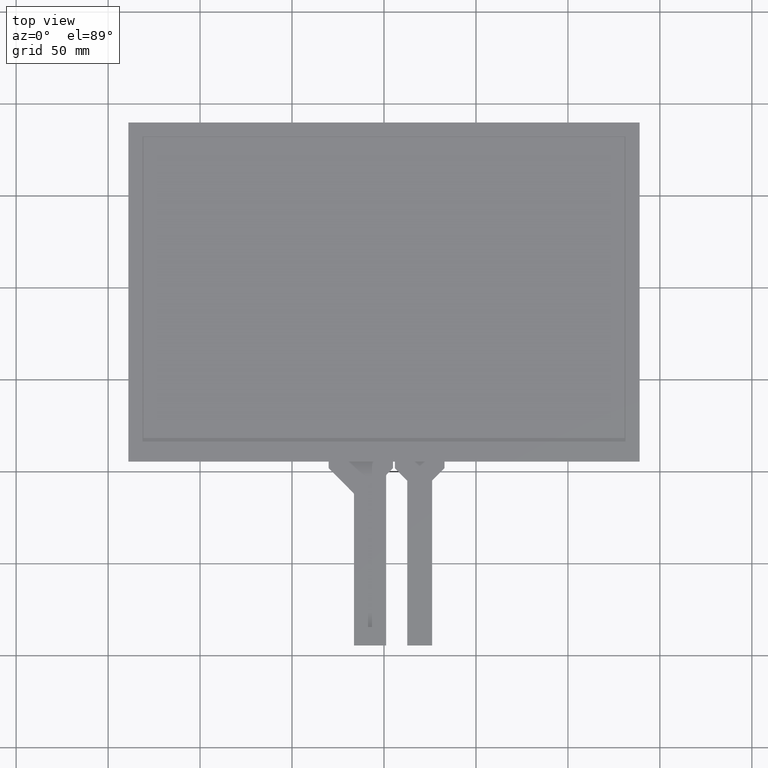
[diagram: clean part render]
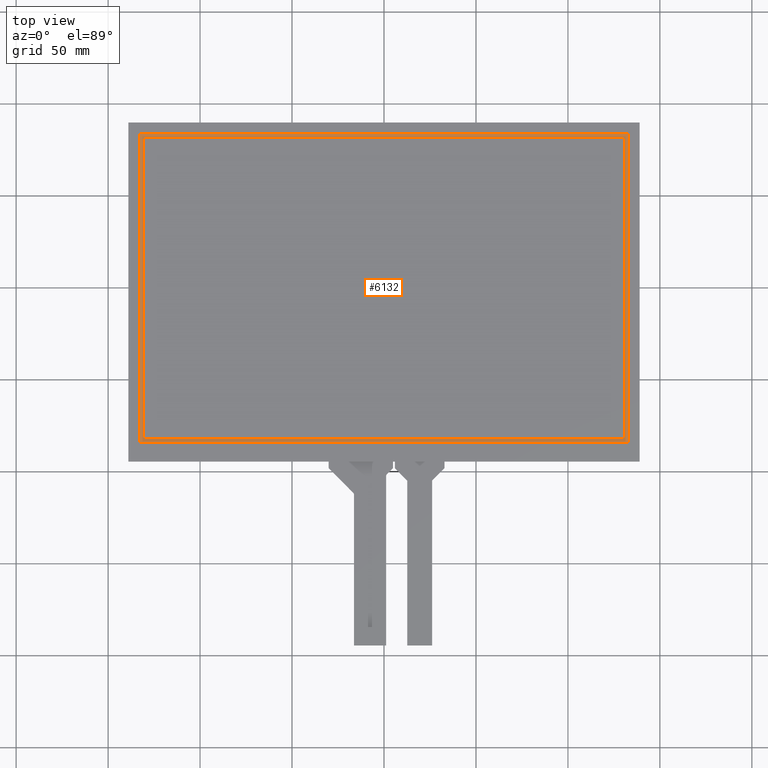
[diagram: same view with one face highlighted and labeled with its STEP entity id]
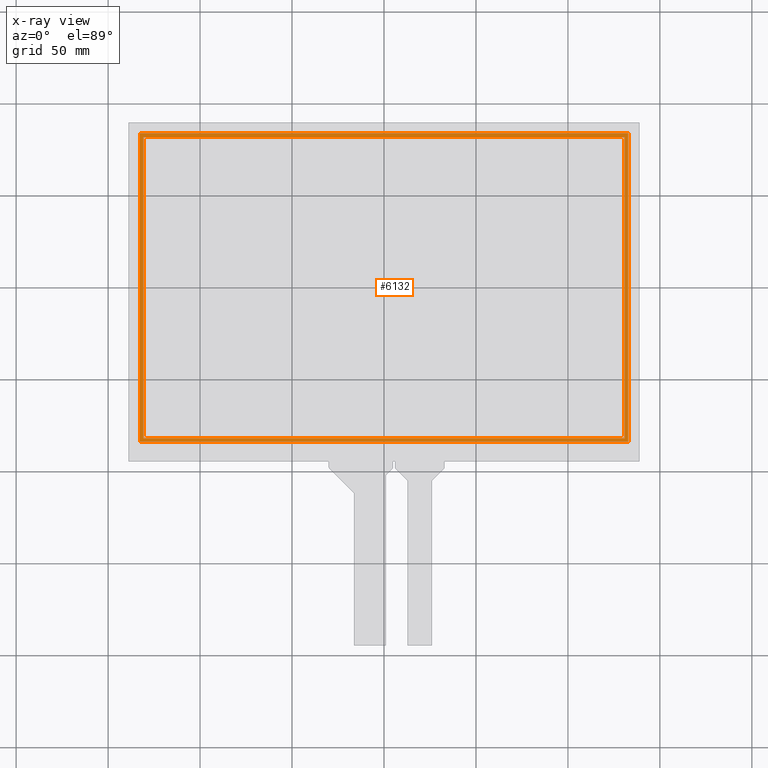
[diagram: x-ray of the same camera — body ghosted, the highlighted face saturated]
A machine part, top view. The second image highlights one B-rep face of the part: STEP entity #6132.
The next image is the same camera in x-ray: the body ghosted, the highlighted face saturated — about 0% of this face is hidden behind the body in this view.
In plain terms, the highlighted planar face has unit normal (0, 0, -1).
Its self-contained STEP definition (entity closure, byte-faithful):
#84=FACE_BOUND('',#951,.T.);
#362=PLANE('',#6470);
#656=FACE_OUTER_BOUND('',#950,.T.);
#950=EDGE_LOOP('',(#5786,#5787,#5788,#5789));
#951=EDGE_LOOP('',(#5790,#5791,#5792,#5793));
#1768=LINE('',#9622,#2608);
#1772=LINE('',#9629,#2612);
#1775=LINE('',#9635,#2615);
#1777=LINE('',#9638,#2617);
#1780=LINE('',#9646,#2620);
#1784=LINE('',#9653,#2624);
#1787=LINE('',#9659,#2627);
#1789=LINE('',#9662,#2629);
#2608=VECTOR('',#7892,10.);
#2612=VECTOR('',#7898,10.);
#2615=VECTOR('',#7903,10.);
#2617=VECTOR('',#7907,10.);
#2620=VECTOR('',#7912,10.);
#2624=VECTOR('',#7918,10.);
#2627=VECTOR('',#7923,10.);
#2629=VECTOR('',#7927,10.);
#3220=VERTEX_POINT('',#9619);
#3221=VERTEX_POINT('',#9621);
#3223=VERTEX_POINT('',#9627);
#3225=VERTEX_POINT('',#9633);
#3228=VERTEX_POINT('',#9643);
#3229=VERTEX_POINT('',#9645);
#3231=VERTEX_POINT('',#9651);
#3233=VERTEX_POINT('',#9657);
#4072=EDGE_CURVE('',#3220,#3221,#1768,.T.);
#4076=EDGE_CURVE('',#3223,#3220,#1772,.T.);
#4079=EDGE_CURVE('',#3225,#3223,#1775,.T.);
#4081=EDGE_CURVE('',#3221,#3225,#1777,.T.);
#4084=EDGE_CURVE('',#3228,#3229,#1780,.T.);
#4088=EDGE_CURVE('',#3231,#3228,#1784,.T.);
#4091=EDGE_CURVE('',#3233,#3231,#1787,.T.);
#4093=EDGE_CURVE('',#3229,#3233,#1789,.T.);
#5786=ORIENTED_EDGE('',*,*,#4093,.F.);
#5787=ORIENTED_EDGE('',*,*,#4084,.F.);
#5788=ORIENTED_EDGE('',*,*,#4088,.F.);
#5789=ORIENTED_EDGE('',*,*,#4091,.F.);
#5790=ORIENTED_EDGE('',*,*,#4081,.F.);
#5791=ORIENTED_EDGE('',*,*,#4072,.F.);
#5792=ORIENTED_EDGE('',*,*,#4076,.F.);
#5793=ORIENTED_EDGE('',*,*,#4079,.F.);
#6132=ADVANCED_FACE('',(#656,#84),#362,.F.);
#6470=AXIS2_PLACEMENT_3D('',#9663,#7928,#7929);
#7892=DIRECTION('',(1.,0.,0.));
#7898=DIRECTION('',(0.,-1.,0.));
#7903=DIRECTION('',(-1.,0.,0.));
#7907=DIRECTION('',(0.,1.,0.));
#7912=DIRECTION('',(-2.11849354728712E-16,1.,0.));
#7918=DIRECTION('',(-1.,-1.33751738528744E-16,0.));
#7923=DIRECTION('',(1.05924677364356E-16,-1.,0.));
#7927=DIRECTION('',(1.,6.6875869264372E-17,0.));
#7928=DIRECTION('center_axis',(0.,0.,-1.));
#7929=DIRECTION('ref_axis',(-1.,0.,0.));
#9619=CARTESIAN_POINT('',(-130.81,-81.85,-0.1));
#9621=CARTESIAN_POINT('',(130.81,-81.85,-0.1));
#9622=CARTESIAN_POINT('',(130.81,-81.85,-0.1));
#9627=CARTESIAN_POINT('',(-130.81,81.85,-0.1));
#9629=CARTESIAN_POINT('',(-130.81,-81.85,-0.1));
#9633=CARTESIAN_POINT('',(130.81,81.85,-0.1));
#9635=CARTESIAN_POINT('',(-130.81,81.85,-0.1));
#9638=CARTESIAN_POINT('',(130.81,81.85,-0.1));
#9643=CARTESIAN_POINT('',(-132.81,-83.85,-0.1));
#9645=CARTESIAN_POINT('',(-132.81,83.85,-0.1));
#9646=CARTESIAN_POINT('',(-132.81,83.85,-0.1));
#9651=CARTESIAN_POINT('',(132.81,-83.85,-0.1));
#9653=CARTESIAN_POINT('',(-132.81,-83.85,-0.1));
#9657=CARTESIAN_POINT('',(132.81,83.85,-0.1));
#9659=CARTESIAN_POINT('',(132.81,-83.85,-0.1));
#9662=CARTESIAN_POINT('',(132.81,83.85,-0.1));
#9663=CARTESIAN_POINT('Origin',(-1.77635683940025E-14,1.77635683940025E-14,
-0.1));